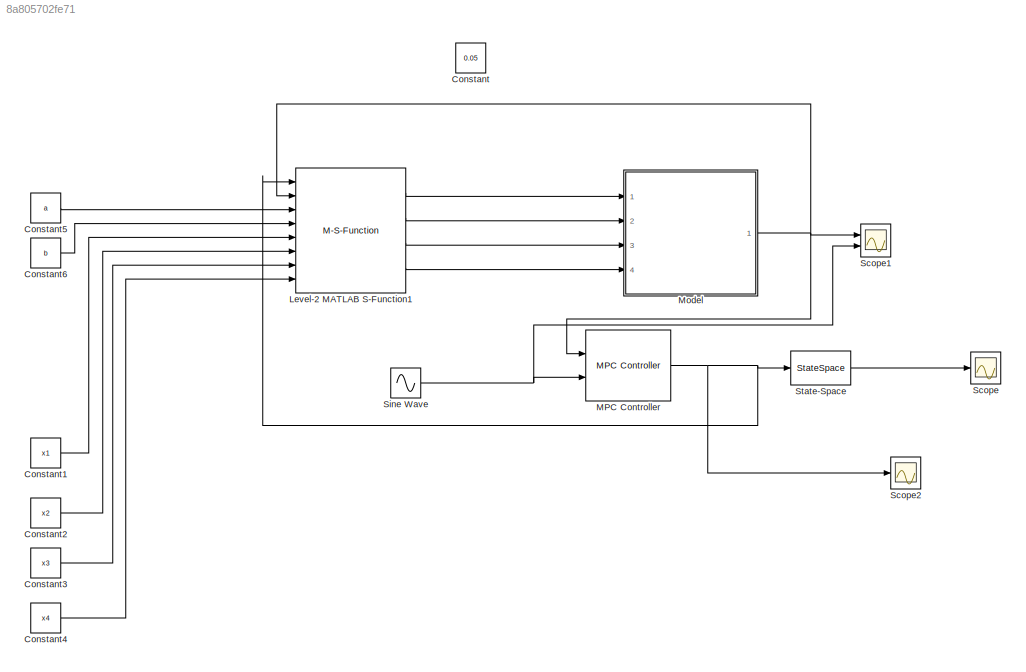
MODEL slx_8a805702fe71
KIND model
CONFIG AbsTol = auto
CONFIG EnableMultiTasking = off
CONFIG FixedStep = auto
CONFIG MaxStep = auto
CONFIG MinStep = auto
CONFIG RelTol = 1e-3
CONFIG SampleTimeConstraint = Unconstrained
CONFIG Solver = VariableStepAuto
CONFIG SolverName = VariableStepAuto
CONFIG StartTime = 0.0
CONFIG StopTime = 100
BLOCK [Constant] Constant
  Value = 0.05
BLOCK [Constant] Constant1
  Value = x1
BLOCK [Constant] Constant2
  Value = x2
BLOCK [Constant] Constant3
  Value = x3
BLOCK [Constant] Constant4
  Value = x4
BLOCK [Constant] Constant5
  Value = a
BLOCK [Constant] Constant6
  Value = b
BLOCK [M-S-Function] Level-2 MATLAB S-Function1
  FunctionName = fminsim
  Ports = [8, 4]
BLOCK [Reference] MPC Controller  REF=mpclib/MPC Controller  (lib defined in mdl_ae329e0e0455)
  Ports = [2, 1]
  SCDEnableBlockLinearizationSpecification = on
  SourceBlock = mpclib/MPC Controller
  SourceType = MPC
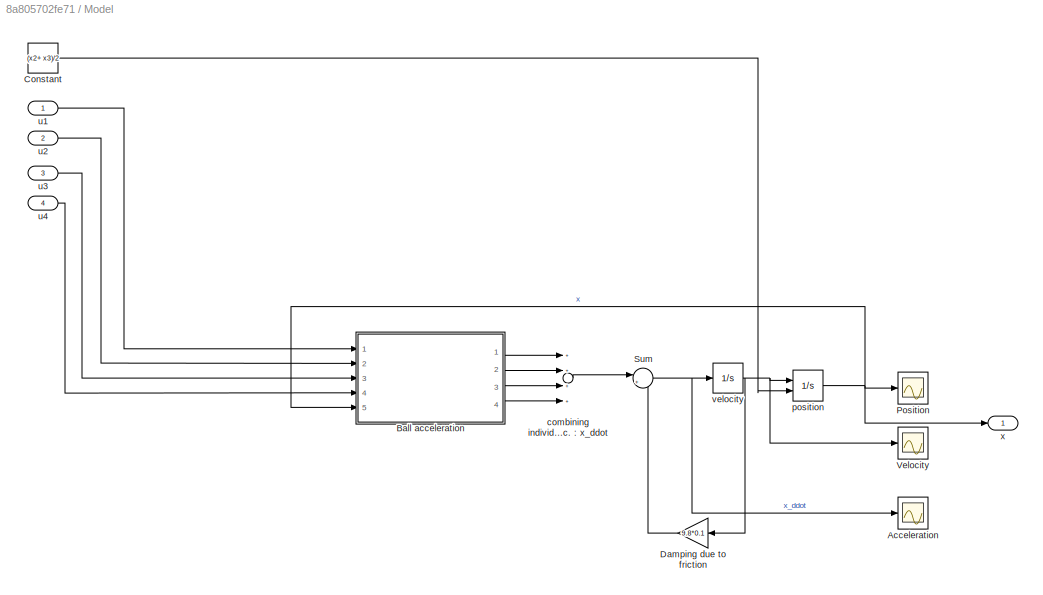
BLOCK [SubSystem] Model
  Ports = [4, 1]
  RequestExecContextInheritance = off
  Variant = off
BLOCK [Scope] Model/Acceleration
  NumInputPorts = 1
  Ports = [1]
  ScopeSpecificationString = Simulink.scopes.TimeScopeBlockCfg('CurrentConfiguration', extmgr.ConfigurationSet(extmgr.Configuration('Core','General UI',true),extmgr.Configuration('Core','Source UI',true),extmgr.Configuration('Sources','WiredSimulink',true,'DataLoggingVariableName','ScopeData1','DataLoggingLimitDataPoints',true,'DataLoggingSaveFormat','Array','DataLoggingDecimation','1','DataLoggingDecimateData',true),extmgr.C...<+165ch>
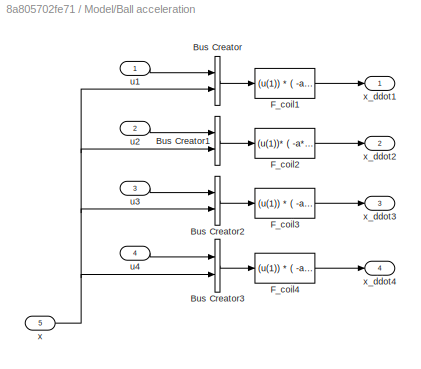
BLOCK [SubSystem] Model/Ball acceleration
  Ports = [5, 4]
  RequestExecContextInheritance = off
  Variant = off
BLOCK [BusCreator] Model/Ball acceleration/Bus Creator
  DisplayOption = bar
  InheritFromInputs = on
  Inputs = 2
  Ports = [2, 1]
BLOCK [BusCreator] Model/Ball acceleration/Bus Creator1
  DisplayOption = bar
  InheritFromInputs = on
  Inputs = 2
  Ports = [2, 1]
BLOCK [BusCreator] Model/Ball acceleration/Bus Creator2
  DisplayOption = bar
  InheritFromInputs = on
  Inputs = 2
  Ports = [2, 1]
BLOCK [BusCreator] Model/Ball acceleration/Bus Creator3
  DisplayOption = bar
  InheritFromInputs = on
  Inputs = 2
  Ports = [2, 1]
BLOCK [Fcn] Model/Ball acceleration/F_coil1
  Expr = (u(1)) * ( -a*(-x1+u(2)) / ( (m* (  (-x1 + u(2))^2 + b)^3)))
BLOCK [Fcn] Model/Ball acceleration/F_coil2
  Expr = (u(1))* ( -a*(u(2)-x2) / ( (m* (  (u(2) - x2)^2 + b)^3)))
BLOCK [Fcn] Model/Ball acceleration/F_coil3
  Expr = (u(1)) * ( -a*(u(2)-x3) / ( (m* (  (u(2)-x3)^2 + b)^3)))
BLOCK [Fcn] Model/Ball acceleration/F_coil4
  Expr = (u(1)) * ( -a*(u(2) -x4 ) / ( (m* (  (u(2) - x4)^2 + b)^3)))
BLOCK [Inport] Model/Ball acceleration/u1
  IconDisplay = Port number
BLOCK [Inport] Model/Ball acceleration/u2
  IconDisplay = Port number
  Port = 2
BLOCK [Inport] Model/Ball acceleration/u3
  IconDisplay = Port number
  Port = 3
BLOCK [Inport] Model/Ball acceleration/u4
  IconDisplay = Port number
  Port = 4
BLOCK [Inport] Model/Ball acceleration/x
  IconDisplay = Port number
  Port = 5
BLOCK [Outport] Model/Ball acceleration/x_ddot1
  IconDisplay = Port number
BLOCK [Outport] Model/Ball acceleration/x_ddot2
  IconDisplay = Port number
  Port = 2
BLOCK [Outport] Model/Ball acceleration/x_ddot3
  IconDisplay = Port number
  Port = 3
BLOCK [Outport] Model/Ball acceleration/x_ddot4
  IconDisplay = Port number
  Port = 4
BLOCK [Constant] Model/Constant
  Value = (x2+ x3)/2
BLOCK [Gain] Model/Damping due to friction
  Gain = 9.8*0.1
  OutDataTypeStr = Inherit: Inherit via internal rule
  ParamDataTypeStr = Inherit: Inherit via internal rule
  SaturateOnIntegerOverflow = off
BLOCK [Scope] Model/Position
  NumInputPorts = 1
  Ports = [1]
  ScopeSpecificationString = Simulink.scopes.TimeScopeBlockCfg('CurrentConfiguration', extmgr.ConfigurationSet(extmgr.Configuration('Core','General UI',true),extmgr.Configuration('Core','Source UI',true),extmgr.Configuration('Sources','WiredSimulink',true,'DataLoggingVariableName','ScopeData3','DataLoggingLimitDataPoints',true,'DataLoggingSaveFormat','Array','DataLoggingDecimation','1','DataLoggingDecimateData',true),extmgr.C...<+165ch>
BLOCK [Sum] Model/Sum
  IconShape = round
  InputSameDT = off
  Inputs = |+-
  OutDataTypeStr = Inherit: Inherit via internal rule
  Ports = [2, 1]
  SaturateOnIntegerOverflow = off
BLOCK [Scope] Model/Velocity
  NumInputPorts = 1
  Ports = [1]
  ScopeSpecificationString = Simulink.scopes.TimeScopeBlockCfg('CurrentConfiguration', extmgr.ConfigurationSet(extmgr.Configuration('Core','General UI',true),extmgr.Configuration('Core','Source UI',true),extmgr.Configuration('Sources','WiredSimulink',true,'DataLoggingLimitDataPoints',true,'DataLoggingSaveFormat','Array','DataLoggingDecimation','1','DataLoggingDecimateData',true),extmgr.Configuration('Visuals','Time Domain',tr...<+126ch>
BLOCK [Sum] Model/combining individual acc. : x_ddot
  InputSameDT = off
  Inputs = ++++
  OutDataTypeStr = Inherit: Inherit via internal rule
  Ports = [4, 1]
  SaturateOnIntegerOverflow = off
BLOCK [Integrator] Model/position
  InitialCondition = x0
  InitialConditionSource = external
  Ports = [2, 1]
BLOCK [Inport] Model/u1
  IconDisplay = Port number
BLOCK [Inport] Model/u2
  IconDisplay = Port number
  Port = 2
BLOCK [Inport] Model/u3
  IconDisplay = Port number
  Port = 3
BLOCK [Inport] Model/u4
  IconDisplay = Port number
  Port = 4
BLOCK [Integrator] Model/velocity
  Ports = [1, 1]
BLOCK [Outport] Model/x
  IconDisplay = Port number
BLOCK [Scope] Scope
  NumInputPorts = 1
  Ports = [1]
  ScopeSpecificationString = Simulink.scopes.TimeScopeBlockCfg('CurrentConfiguration', extmgr.ConfigurationSet(extmgr.Configuration('Core','General UI',true),extmgr.Configuration('Core','Source UI',true),extmgr.Configuration('Sources','WiredSimulink',true,'DataLoggingVariableName','ScopeData1'),extmgr.Configuration('Visuals','Time Domain',true,'SerializedDisplays',{struct('MinYLimReal','-7.77292','MaxYLimReal','0.86366','YLab...<+1395ch>
BLOCK [Scope] Scope1
  NumInputPorts = 2
  Ports = [2]
  ScopeSpecificationString = Simulink.scopes.TimeScopeBlockCfg('CurrentConfiguration', extmgr.ConfigurationSet(extmgr.Configuration('Core','General UI',true),extmgr.Configuration('Core','Source UI',true),extmgr.Configuration('Sources','WiredSimulink',true,'DataLoggingVariableName','ScopeData2'),extmgr.Configuration('Visuals','Time Domain',true,'SerializedDisplays',{struct('MinYLimReal','0.02467','MaxYLimReal','0.06545','YLabe...<+1449ch>
BLOCK [Scope] Scope2
  NumInputPorts = 1
  Ports = [1]
  ScopeSpecificationString = Simulink.scopes.TimeScopeBlockCfg('CurrentConfiguration', extmgr.ConfigurationSet(extmgr.Configuration('Core','General UI',true),extmgr.Configuration('Core','Source UI',true),extmgr.Configuration('Sources','WiredSimulink',true,'DataLoggingVariableName','ScopeData1'),extmgr.Configuration('Visuals','Time Domain',true,'SerializedDisplays',{struct('MinYLimReal','-0.24759','MaxYLimReal','-0.23676','YLa...<+1448ch>
BLOCK [Sin] Sine Wave
  Amplitude = 0.02
  Bias = 0.04
  Frequency = 0.01
  Ports = [0, 1]
  SampleTime = 0
BLOCK [StateSpace] State-Space
  A = [ 0 1; 0 0 ]
  B = [ 0 ; 1/m]
  C = [ 1 0 ]
  D = [0]
  Ports = [1, 1]
  X0 = [ 0; 0]
LINE Constant1:1 -> Level-2 MATLAB S-Function1:5
LINE Constant2:1 -> Level-2 MATLAB S-Function1:6
LINE Constant3:1 -> Level-2 MATLAB S-Function1:7
LINE Constant4:1 -> Level-2 MATLAB S-Function1:8
LINE Constant5:1 -> Level-2 MATLAB S-Function1:3
LINE Constant6:1 -> Level-2 MATLAB S-Function1:4
LINE Level-2 MATLAB S-Function1:1 -> Model:1
LINE Level-2 MATLAB S-Function1:2 -> Model:2
LINE Level-2 MATLAB S-Function1:3 -> Model:3
LINE Level-2 MATLAB S-Function1:4 -> Model:4
NET MPC Controller:1 -> Level-2 MATLAB S-Function1:1, Scope2:1, State-Space:1
LINE Model/Ball acceleration/Bus Creator1:1 -> Model/Ball acceleration/F_coil2:1
LINE Model/Ball acceleration/Bus Creator2:1 -> Model/Ball acceleration/F_coil3:1
LINE Model/Ball acceleration/Bus Creator3:1 -> Model/Ball acceleration/F_coil4:1
LINE Model/Ball acceleration/Bus Creator:1 -> Model/Ball acceleration/F_coil1:1
LINE Model/Ball acceleration/F_coil1:1 -> Model/Ball acceleration/x_ddot1:1
LINE Model/Ball acceleration/F_coil2:1 -> Model/Ball acceleration/x_ddot2:1
LINE Model/Ball acceleration/F_coil3:1 -> Model/Ball acceleration/x_ddot3:1
LINE Model/Ball acceleration/F_coil4:1 -> Model/Ball acceleration/x_ddot4:1
LINE Model/Ball acceleration/u1:1 -> Model/Ball acceleration/Bus Creator:1
LINE Model/Ball acceleration/u2:1 -> Model/Ball acceleration/Bus Creator1:1
LINE Model/Ball acceleration/u3:1 -> Model/Ball acceleration/Bus Creator2:1
LINE Model/Ball acceleration/u4:1 -> Model/Ball acceleration/Bus Creator3:1
NET Model/Ball acceleration/x:1 -> Model/Ball acceleration/Bus Creator1:2, Model/Ball acceleration/Bus Creator2:2, Model/Ball acceleration/Bus Creator3:2, Model/Ball acceleration/Bus Creator:2
LINE Model/Ball acceleration:1 -> Model/combining individual acc. : x_ddot:1
LINE Model/Ball acceleration:2 -> Model/combining individual acc. : x_ddot:2
LINE Model/Ball acceleration:3 -> Model/combining individual acc. : x_ddot:3
LINE Model/Ball acceleration:4 -> Model/combining individual acc. : x_ddot:4
LINE Model/Constant:1 -> Model/position:2
LINE Model/Damping due to friction:1 -> Model/Sum:2
NET Model/Sum:1 -> Model/Acceleration:1, Model/velocity:1
LINE Model/combining individual acc. : x_ddot:1 -> Model/Sum:1
NET Model/position:1 -> Model/Ball acceleration:5, Model/Position:1, Model/x:1
LINE Model/u1:1 -> Model/Ball acceleration:1
LINE Model/u2:1 -> Model/Ball acceleration:2
LINE Model/u3:1 -> Model/Ball acceleration:3
LINE Model/u4:1 -> Model/Ball acceleration:4
NET Model/velocity:1 -> Model/Damping due to friction:1, Model/Velocity:1, Model/position:1
NET Model:1 -> Level-2 MATLAB S-Function1:2, MPC Controller:1, Scope1:1
NET Sine Wave:1 -> MPC Controller:2, Scope1:2
LINE State-Space:1 -> Scope:1
note: NET lines group one-source signal fan-out (src -> all destinations, sorted); 1:1 wires keep LINE
